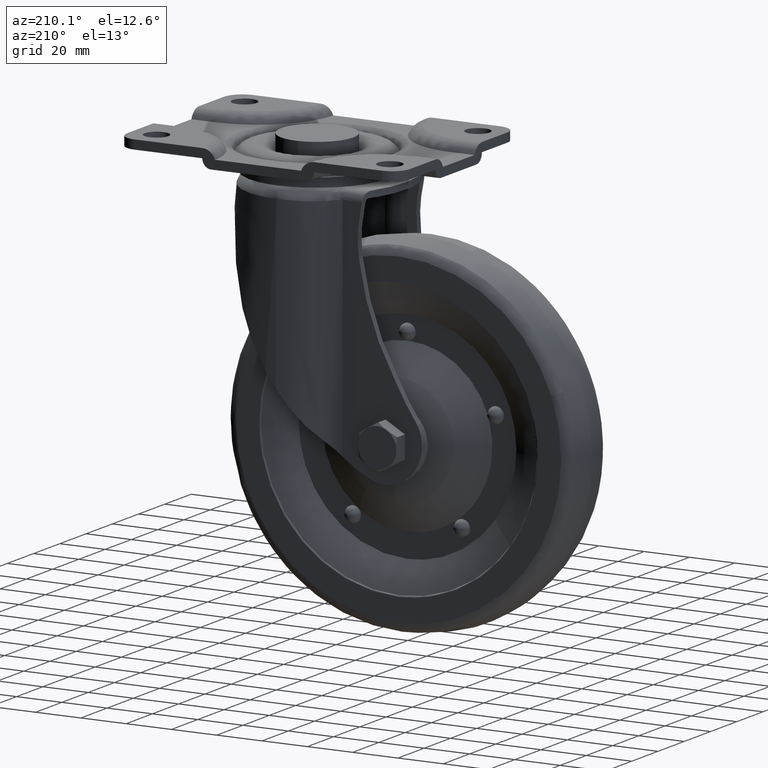
[diagram: clean part render]
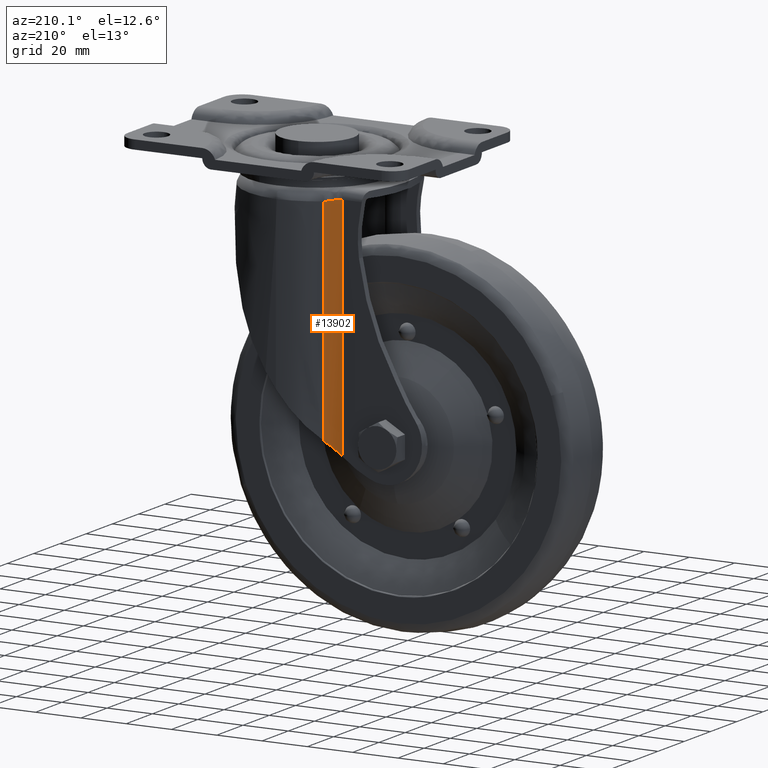
[diagram: same view with one face highlighted and labeled with its STEP entity id]
A machine part, auxiliary view. The second image highlights one B-rep face of the part: STEP entity #13902.
In plain terms, the highlighted face is a freeform B-spline surface patch.
Its self-contained STEP definition (entity closure, byte-faithful):
#13266=CARTESIAN_POINT('',(-17.988086873891149,25.859047059812749,-19.800000000000001));
#13267=VERTEX_POINT('',#13266);
#13281=CARTESIAN_POINT('',(-24.846352573767749,23.710114000276551,-18.800000000000001));
#13282=VERTEX_POINT('',#13281);
#13283=CARTESIAN_POINT('',(-24.846352573767749,23.710114000276551,-18.800000000000001));
#13284=CARTESIAN_POINT('',(-24.731053868491589,23.710064068223279,-18.801367812148680));
#13285=CARTESIAN_POINT('',(-24.538846073606688,23.712710386376891,-18.803503004891120));
#13286=CARTESIAN_POINT('',(-23.809732119407311,23.740573962428311,-18.840958445216579));
#13287=CARTESIAN_POINT('',(-23.163738173635060,23.815441384362408,-18.926901288356099));
#13288=CARTESIAN_POINT('',(-22.382803756800008,23.962103111189752,-19.068330725893080));
#13289=CARTESIAN_POINT('',(-21.645487370055658,24.125872673261789,-19.213704495527381));
#13290=CARTESIAN_POINT('',(-20.495963242833149,24.492132549264880,-19.464147149192929));
#13291=CARTESIAN_POINT('',(-19.566306956048020,24.919330511830911,-19.651573926416422));
#13292=CARTESIAN_POINT('',(-19.029356138345289,25.210807934848042,-19.724461208238441));
#13293=CARTESIAN_POINT('',(-18.762909340291841,25.360429924422888,-19.758421598041672));
#13294=CARTESIAN_POINT('',(-18.467732936468771,25.539382359959919,-19.785471877446149));
#13295=CARTESIAN_POINT('',(-18.178194237105551,25.728560750030152,-19.795147246749391));
#13296=CARTESIAN_POINT('',(-18.051193609047878,25.815153521189540,-19.798795300235678));
#13297=CARTESIAN_POINT('',(-17.988086873891149,25.859047059812749,-19.800000000000001));
#13298=B_SPLINE_CURVE_WITH_KNOTS('',3,(#13283,#13284,#13285,#13286,#13287,#13288,#13289,#13290,#13291,#13292,#13293,#13294,#13295,#13296,#13297),.UNSPECIFIED.,.F.,.U.,(4,1,1,1,1,1,1,1,1,1,1,1,4),(0.000013208225047,0.345966284130761,0.576603535201449,2.191056352444047,2.306371479830864,2.998273176459525,4.497408851460552,5.996540321167293,6.111861403728216,6.342495406849301,6.919081674733916,7.149716447829896,7.380350457056987),.UNSPECIFIED.);
#13299=EDGE_CURVE('',#13282,#13267,#13298,.T.);
#13854=CARTESIAN_POINT('',(-17.707345500702068,26.060391037767911,-121.781513629735200));
#13855=CARTESIAN_POINT('',(-17.707345500702068,26.060391037767911,-16.225462159256612));
#13856=CARTESIAN_POINT('',(-21.050451559818754,23.589115402371238,-121.781513629735230));
#13857=CARTESIAN_POINT('',(-21.050451559818754,23.589115402371238,-16.225462159256608));
#13858=CARTESIAN_POINT('',(-25.205875033399998,23.715674257525613,-121.781513629735190));
#13859=CARTESIAN_POINT('',(-25.205875033399998,23.715674257525613,-16.225462159256615));
#13867=(BOUNDED_SURFACE()B_SPLINE_SURFACE(1,2,((#13854,#13856,#13858),(#13855,#13857,#13859)),.UNSPECIFIED.,.F.,.F.,.U.)B_SPLINE_SURFACE_WITH_KNOTS((2,2),(3,3),(0.0,105.556051470478590),(0.0,8.079109483346604),.UNSPECIFIED.)GEOMETRIC_REPRESENTATION_ITEM()RATIONAL_B_SPLINE_SURFACE(((1.0,0.941045728231928,0.991857011863724),(1.0,0.941045728231928,0.991857011863724)))REPRESENTATION_ITEM('')SURFACE());
#13868=CARTESIAN_POINT('',(-24.846352573767799,23.710114000276651,-119.269769394863600));
#13869=VERTEX_POINT('',#13868);
#13870=CARTESIAN_POINT('',(-24.846352573767749,23.710114000276551,-18.800000000000001));
#13871=CARTESIAN_POINT('',(-24.846352573767799,23.710114000276651,-119.269769394863600));
#13872=QUASI_UNIFORM_CURVE('',1,(#13870,#13871),.UNSPECIFIED.,.F.,.U.);
#13873=EDGE_CURVE('',#13282,#13869,#13872,.T.);
#13874=ORIENTED_EDGE('',*,*,#13873,.F.);
#13875=ORIENTED_EDGE('',*,*,#13299,.T.);
#13876=CARTESIAN_POINT('',(-17.988086873891149,25.859047059812749,-113.639846801508200));
#13877=VERTEX_POINT('',#13876);
#13878=CARTESIAN_POINT('',(-17.988086873891149,25.859047059812749,-113.639846801508200));
#13879=CARTESIAN_POINT('',(-17.988086873891149,25.859047059812749,-19.800000000000001));
#13880=QUASI_UNIFORM_CURVE('',1,(#13878,#13879),.UNSPECIFIED.,.F.,.U.);
#13881=EDGE_CURVE('',#13877,#13267,#13880,.T.);
#13882=ORIENTED_EDGE('',*,*,#13881,.F.);
#13883=CARTESIAN_POINT('',(-24.846352573767749,23.710114000276551,-119.269769394863600));
#13884=CARTESIAN_POINT('',(-24.232302958062508,23.709818036353230,-118.799921395098390));
#13885=CARTESIAN_POINT('',(-23.628458636321909,23.756364203075080,-118.329180123527000));
#13886=CARTESIAN_POINT('',(-22.439972593724200,23.937328315577520,-117.385949167443100));
#13887=CARTESIAN_POINT('',(-21.855334822138420,24.071762421214949,-116.913458640709390));
#13888=CARTESIAN_POINT('',(-20.992506819010028,24.339838922153518,-116.203883718265400));
#13889=CARTESIAN_POINT('',(-20.707258320508089,24.440316851975599,-115.967223504753090));
#13890=CARTESIAN_POINT('',(-20.282950260781458,24.608254576929991,-115.612137975571300));
#13891=CARTESIAN_POINT('',(-20.141941227870870,24.667184942917149,-115.493618636751610));
#13892=CARTESIAN_POINT('',(-19.862260140771980,24.790415020168162,-115.257535198461700));
#13893=CARTESIAN_POINT('',(-19.723533988999499,24.854727483046720,-115.139927240006400));
#13894=CARTESIAN_POINT('',(-19.035457171181630,25.189866822381660,-114.554134818343700));
#13895=CARTESIAN_POINT('',(-18.502667639932959,25.501100465463111,-114.092601620495000));
#13896=CARTESIAN_POINT('',(-17.988086873891149,25.859047059812749,-113.639846801508200));
#13897=B_SPLINE_CURVE_WITH_KNOTS('',3,(#13883,#13884,#13885,#13886,#13887,#13888,#13889,#13890,#13891,#13892,#13893,#13894,#13895,#13896),.UNSPECIFIED.,.F.,.U.,(4,2,2,2,2,2,4),(0.0,0.250000000000004,0.500000000000008,0.625000000000009,0.687500000000008,0.750000000000008,1.0),.UNSPECIFIED.);
#13898=EDGE_CURVE('',#13869,#13877,#13897,.T.);
#13899=ORIENTED_EDGE('',*,*,#13898,.F.);
#13900=EDGE_LOOP('',(#13874,#13875,#13882,#13899));
#13901=FACE_OUTER_BOUND('',#13900,.T.);
#13902=ADVANCED_FACE('',(#13901),#13867,.F.);